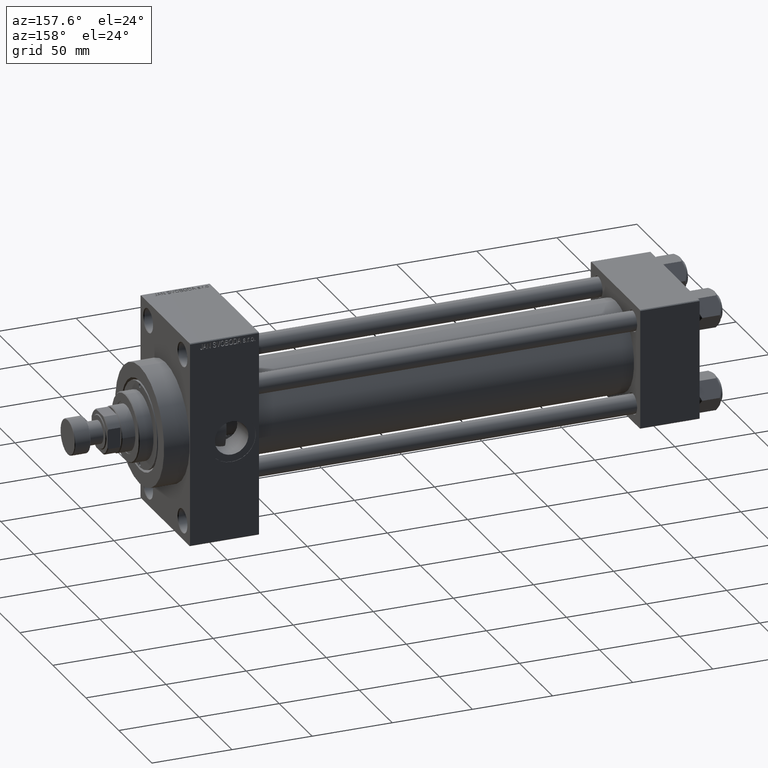
[diagram: clean part render]
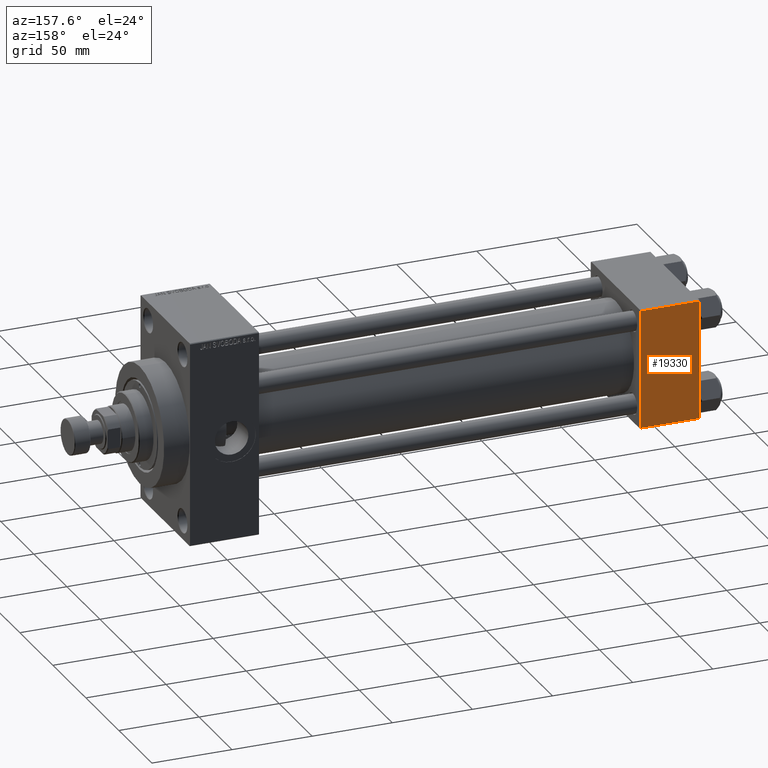
[diagram: same view with one face highlighted and labeled with its STEP entity id]
A machine part, auxiliary view. The second image highlights one B-rep face of the part: STEP entity #19330.
In plain terms, the highlighted planar face has unit normal (0, 1, 0).
Its self-contained STEP definition (entity closure, byte-faithful):
#49 = EDGE_CURVE ( 'NONE', #5724, #42609, #44158, .T. ) ;
#3086 = VECTOR ( 'NONE', #40290, 1000.000000000000000 ) ;
#3391 = VECTOR ( 'NONE', #18945, 1000.000000000000000 ) ;
#3775 = CARTESIAN_POINT ( 'NONE',  ( 0.000000000000000000, 37.49999999999999289, 37.00000000000000000 ) ) ;
#4210 = LINE ( 'NONE', #41241, #3391 ) ;
#4222 = LINE ( 'NONE', #37374, #19415 ) ;
#5724 = VERTEX_POINT ( 'NONE', #9146 ) ;
#5961 = EDGE_CURVE ( 'NONE', #13487, #15329, #4222, .T. ) ;
#6452 = FACE_OUTER_BOUND ( 'NONE', #35882, .T. ) ;
#7840 = DIRECTION ( 'NONE',  ( 1.000000000000000000, 0.000000000000000000, 0.000000000000000000 ) ) ;
#9146 = CARTESIAN_POINT ( 'NONE',  ( 37.00000000000000000, 37.49999999999999289, -36.99999999999998579 ) ) ;
#10498 = LINE ( 'NONE', #40029, #25884 ) ;
#13487 = VERTEX_POINT ( 'NONE', #3775 ) ;
#13620 = EDGE_CURVE ( 'NONE', #13487, #42609, #10498, .T. ) ;
#13898 = CARTESIAN_POINT ( 'NONE',  ( 37.00000000000000000, 37.49999999999999289, -36.99999999999998579 ) ) ;
#14333 = AXIS2_PLACEMENT_3D ( 'NONE', #47615, #21212, #25083 ) ;
#14584 = EDGE_CURVE ( 'NONE', #15329, #5724, #4210, .T. ) ;
#15329 = VERTEX_POINT ( 'NONE', #27257 ) ;
#17979 = DIRECTION ( 'NONE',  ( 0.000000000000000000, 0.000000000000000000, -1.000000000000000000 ) ) ;
#18945 = DIRECTION ( 'NONE',  ( 0.000000000000000000, 0.000000000000000000, -1.000000000000000000 ) ) ;
#18974 = ORIENTED_EDGE ( 'NONE', *, *, #13620, .F. ) ;
#19330 = ADVANCED_FACE ( 'NONE', ( #6452 ), #28477, .T. ) ;
#19415 = VECTOR ( 'NONE', #7840, 1000.000000000000000 ) ;
#20322 = ORIENTED_EDGE ( 'NONE', *, *, #14584, .T. ) ;
#21212 = DIRECTION ( 'NONE',  ( -0.000000000000000000, 1.000000000000000000, 0.000000000000000000 ) ) ;
#22412 = ORIENTED_EDGE ( 'NONE', *, *, #5961, .T. ) ;
#25083 = DIRECTION ( 'NONE',  ( 0.000000000000000000, -0.000000000000000000, 1.000000000000000000 ) ) ;
#25884 = VECTOR ( 'NONE', #17979, 1000.000000000000000 ) ;
#27257 = CARTESIAN_POINT ( 'NONE',  ( 37.00000000000000000, 37.49999999999999289, 37.00000000000000000 ) ) ;
#28477 = PLANE ( 'NONE',  #14333 ) ;
#35882 = EDGE_LOOP ( 'NONE', ( #20322, #37940, #18974, #22412 ) ) ;
#37374 = CARTESIAN_POINT ( 'NONE',  ( 37.00000000000000000, 37.49999999999999289, 37.00000000000000000 ) ) ;
#37940 = ORIENTED_EDGE ( 'NONE', *, *, #49, .T. ) ;
#40029 = CARTESIAN_POINT ( 'NONE',  ( 0.000000000000000000, 37.49999999999999289, 37.50000000000000000 ) ) ;
#40290 = DIRECTION ( 'NONE',  ( -1.000000000000000000, 0.000000000000000000, 0.000000000000000000 ) ) ;
#41241 = CARTESIAN_POINT ( 'NONE',  ( 37.00000000000000000, 37.49999999999999289, 37.50000000000000000 ) ) ;
#42522 = CARTESIAN_POINT ( 'NONE',  ( 0.000000000000000000, 37.49999999999999289, -36.99999999999998579 ) ) ;
#42609 = VERTEX_POINT ( 'NONE', #42522 ) ;
#44158 = LINE ( 'NONE', #13898, #3086 ) ;
#47615 = CARTESIAN_POINT ( 'NONE',  ( 37.00000000000000000, 37.49999999999999289, 37.50000000000000000 ) ) ;